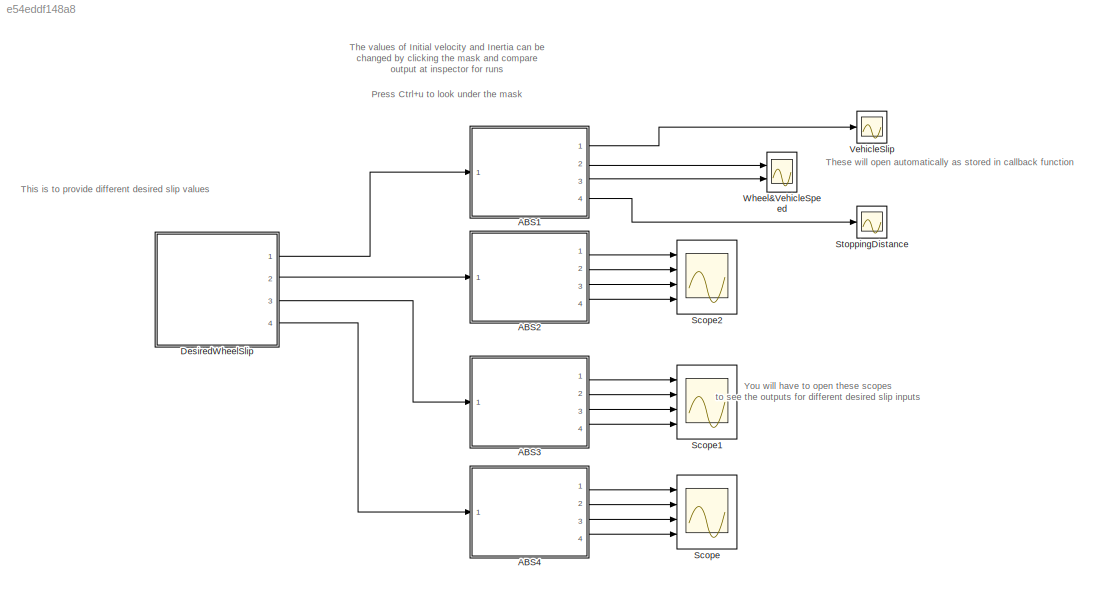
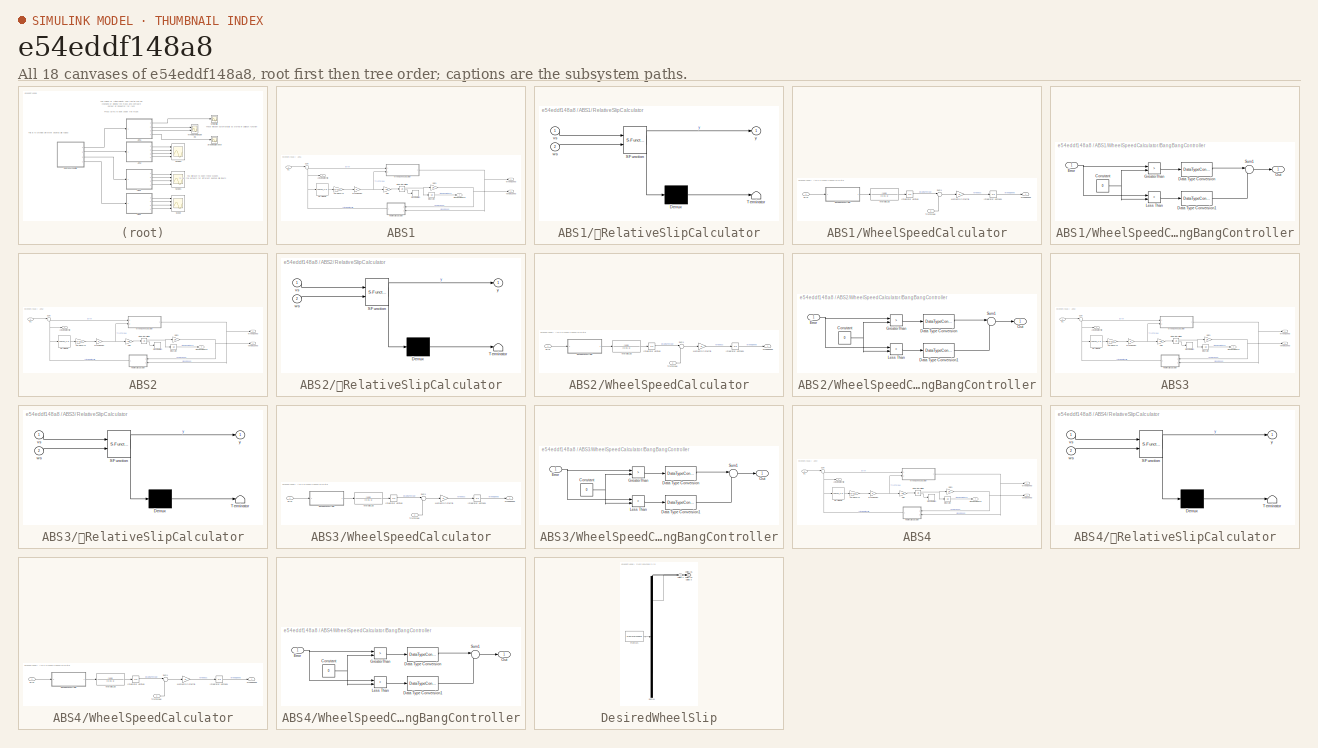
[diagram: thumbnail index - all 18 canvases of the model, root first then tree order]
MODEL slx_e54eddf148a8
KIND model
CONFIG AbsTol = auto
CONFIG EnableMultiTasking = off
CONFIG FixedStep = 0.01
CONFIG InitFcn = m = 75;   % mass of vehicle\ng = 9.81; % gravitational constant\nI = 5;    % moment of inertia\nR = 1.25; % radius of wheel\nv0 = 44;  % initial vehicle speed
CONFIG MaxStep = 0.1
CONFIG MinStep = auto
CONFIG RelTol = 1e-3
CONFIG SampleTimeConstraint = Unconstrained
CONFIG SolverName = ode45
CONFIG StartTime = 0.0
CONFIG StopFcn = open_system("ABS_system/Wheel&VehicleSpeed");\nopen_system("ABS_system/VehicleSlip");\nopen_system("ABS_system/StoppingDistance");
CONFIG StopTime = 20
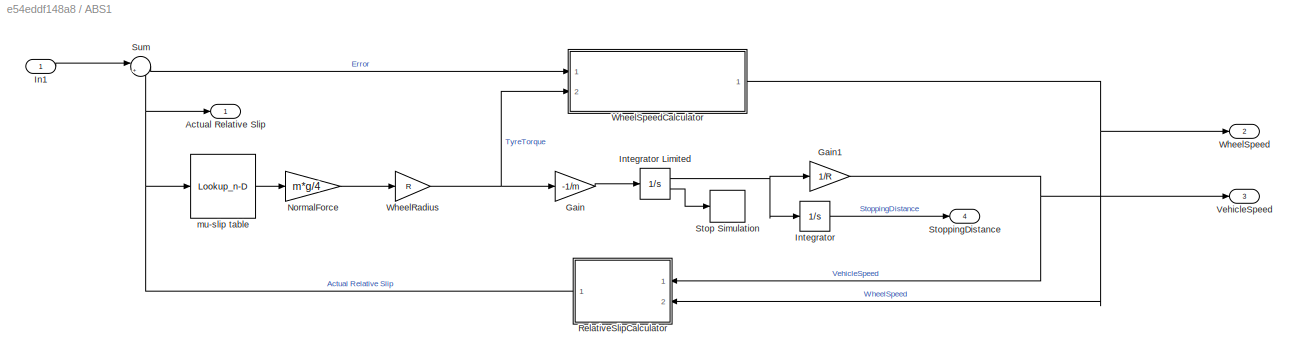
BLOCK [SubSystem] ABS1
  Ports = [1, 4]
  RequestExecContextInheritance = off
BLOCK [SubSystem] ABS1/	RelativeSlipCalculator
  ErrorFcn = Stateflow.Translate.translate
  PermitHierarchicalResolution = ExplicitOnly
  Ports = [2, 1]
  RequestExecContextInheritance = off
  SFBlockType = MATLAB Function
  TreatAsAtomicUnit = on
BLOCK [Demux] ABS1/	RelativeSlipCalculator/ Demux 
  Outputs = 1
  Ports = [1, 1]
BLOCK [S-Function] ABS1/	RelativeSlipCalculator/ SFunction 
  EnableBusSupport = on
  FunctionName = sf_sfun
  PortCounts = [2 2]
  Ports = [2, 2]
  SFcnIsStateOwnerBlock = off
  SFunctionDeploymentMode = off
  Tag = Stateflow S-Function 2
BLOCK [Terminator] ABS1/	RelativeSlipCalculator/ Terminator 
BLOCK [Inport] ABS1/	RelativeSlipCalculator/vs
BLOCK [Inport] ABS1/	RelativeSlipCalculator/ws
  Port = 2
BLOCK [Outport] ABS1/	RelativeSlipCalculator/y
BLOCK [Outport] ABS1/Actual Relative Slip
BLOCK [Gain] ABS1/Gain
  Gain = -1/m
BLOCK [Gain] ABS1/Gain1
  Gain = 1/R
BLOCK [Inport] ABS1/In1
BLOCK [Integrator] ABS1/Integrator
  Ports = [1, 1]
BLOCK [Integrator] ABS1/Integrator Limited
  InitialCondition = v0
  LimitOutput = on
  LowerSaturationLimit = 0
  Ports = [1, 2]
  ShowSaturationPort = on
  UpperSaturationLimit = 1000
BLOCK [Gain] ABS1/NormalForce
  Gain = m*g/4
BLOCK [Stop] ABS1/Stop Simulation
BLOCK [Outport] ABS1/StoppingDistance
  Port = 4
BLOCK [Sum] ABS1/Sum
  Inputs = |+-
  Ports = [2, 1]
BLOCK [Outport] ABS1/VehicleSpeed
  Port = 3
BLOCK [Gain] ABS1/WheelRadius
  Gain = R
BLOCK [Outport] ABS1/WheelSpeed
  Port = 2
BLOCK [SubSystem] ABS1/WheelSpeedCalculator
  Ports = [2, 1]
  RequestExecContextInheritance = off
BLOCK [SubSystem] ABS1/WheelSpeedCalculator/BangBangController
  Ports = [1, 1]
  RequestExecContextInheritance = off
BLOCK [Constant] ABS1/WheelSpeedCalculator/BangBangController/Constant
  Value = 0
BLOCK [DataTypeConversion] ABS1/WheelSpeedCalculator/BangBangController/Data Type Conversion
  OutDataTypeStr = double
  SaturateOnIntegerOverflow = off
BLOCK [DataTypeConversion] ABS1/WheelSpeedCalculator/BangBangController/Data Type Conversion1
  OutDataTypeStr = double
  SaturateOnIntegerOverflow = off
BLOCK [Inport] ABS1/WheelSpeedCalculator/BangBangController/Error
BLOCK [RelationalOperator] ABS1/WheelSpeedCalculator/BangBangController/GreaterThan
  InputSameDT = off
  Operator = >
  OutDataTypeStr = boolean
  Ports = [2, 1]
  RndMeth = Simplest
BLOCK [RelationalOperator] ABS1/WheelSpeedCalculator/BangBangController/Less Than
  InputSameDT = off
  Operator = <
  OutDataTypeStr = boolean
  Ports = [2, 1]
  RndMeth = Simplest
BLOCK [Outport] ABS1/WheelSpeedCalculator/BangBangController/Out
BLOCK [Sum] ABS1/WheelSpeedCalculator/BangBangController/Sum1
  Inputs = |+-
  Ports = [2, 1]
BLOCK [Inport] ABS1/WheelSpeedCalculator/Error
BLOCK [TransferFcn] ABS1/WheelSpeedCalculator/HydraulicLag
  Denominator = [0.01 1]
  Numerator = [100]
BLOCK [Integrator] ABS1/WheelSpeedCalculator/Integrator Limited
  LimitOutput = on
  LowerSaturationLimit = 0
  Ports = [1, 1]
  UpperSaturationLimit = 1000
BLOCK [Integrator] ABS1/WheelSpeedCalculator/Integrator Limited1
  InitialCondition = v0/R
  LimitOutput = on
  LowerSaturationLimit = 0
  Ports = [1, 1]
  UpperSaturationLimit = 1000
BLOCK [Gain] ABS1/WheelSpeedCalculator/MomentOfIntertia
  Gain = 1/I
BLOCK [Sum] ABS1/WheelSpeedCalculator/Sum1
  Inputs = |-+
  Ports = [2, 1]
BLOCK [Inport] ABS1/WheelSpeedCalculator/TyreTorque
  Port = 2
BLOCK [Outport] ABS1/WheelSpeedCalculator/WheelSpeed
BLOCK [Lookup_n-D] ABS1/mu-slip table
  BreakpointsForDimension1 = [0\n,0.05\n,0.1\n,0.15\n,0.2\n,0.25\n,0.3\n,0.35\n,0.4\n,0.45\n,0.5\n,0.55\n,0.6\n,0.65\n,0.7\n,0.75\n,0.8\n,0.85\n,0.9\n,0.95\n,1]
  InputPortMap = u0
  InternalRulePriority = Speed
  NumberOfTableDimensions = 1
  Ports = [1, 1]
  RndMeth = Simplest
  Table = [0\n,0.4\n,0.8\n,0.97\n,1\n,0.98\n,0.96\n,0.94\n,0.92\n,0.9\n,0.88\n,0.855\n,0.83\n,0.81\n,0.79\n,0.77\n,0.75\n,0.73\n,0.72\n,0.71\n,0.7]
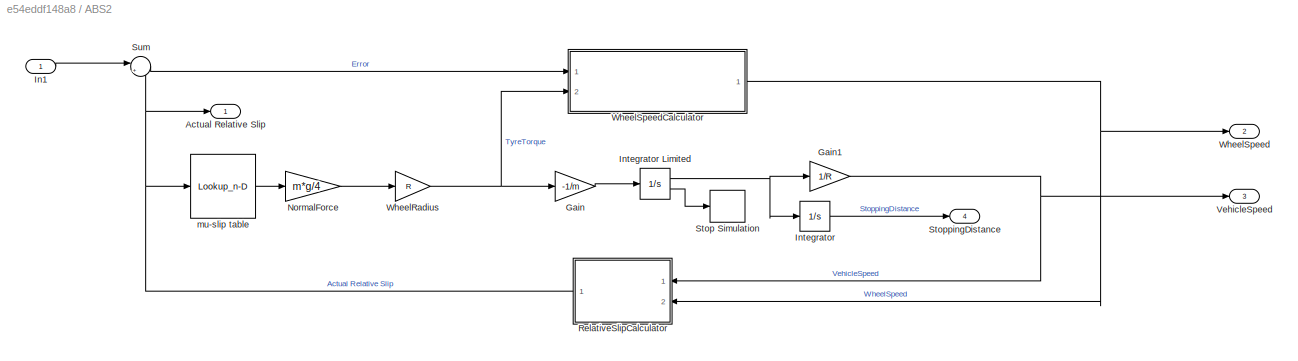
BLOCK [SubSystem] ABS2
  Ports = [1, 4]
  RequestExecContextInheritance = off
BLOCK [SubSystem] ABS2/	RelativeSlipCalculator
  ErrorFcn = Stateflow.Translate.translate
  PermitHierarchicalResolution = ExplicitOnly
  Ports = [2, 1]
  RequestExecContextInheritance = off
  SFBlockType = MATLAB Function
  TreatAsAtomicUnit = on
BLOCK [Demux] ABS2/	RelativeSlipCalculator/ Demux 
  Outputs = 1
  Ports = [1, 1]
BLOCK [S-Function] ABS2/	RelativeSlipCalculator/ SFunction 
  EnableBusSupport = on
  FunctionName = sf_sfun
  PortCounts = [2 2]
  Ports = [2, 2]
  SFcnIsStateOwnerBlock = off
  SFunctionDeploymentMode = off
  Tag = Stateflow S-Function 7
BLOCK [Terminator] ABS2/	RelativeSlipCalculator/ Terminator 
BLOCK [Inport] ABS2/	RelativeSlipCalculator/vs
BLOCK [Inport] ABS2/	RelativeSlipCalculator/ws
  Port = 2
BLOCK [Outport] ABS2/	RelativeSlipCalculator/y
BLOCK [Outport] ABS2/Actual Relative Slip
BLOCK [Gain] ABS2/Gain
  Gain = -1/m
BLOCK [Gain] ABS2/Gain1
  Gain = 1/R
BLOCK [Inport] ABS2/In1
BLOCK [Integrator] ABS2/Integrator
  Ports = [1, 1]
BLOCK [Integrator] ABS2/Integrator Limited
  InitialCondition = v0
  LimitOutput = on
  LowerSaturationLimit = 0
  Ports = [1, 2]
  ShowSaturationPort = on
  UpperSaturationLimit = 1000
BLOCK [Gain] ABS2/NormalForce
  Gain = m*g/4
BLOCK [Stop] ABS2/Stop Simulation
BLOCK [Outport] ABS2/StoppingDistance
  Port = 4
BLOCK [Sum] ABS2/Sum
  Inputs = |+-
  Ports = [2, 1]
BLOCK [Outport] ABS2/VehicleSpeed
  Port = 3
BLOCK [Gain] ABS2/WheelRadius
  Gain = R
BLOCK [Outport] ABS2/WheelSpeed
  Port = 2
BLOCK [SubSystem] ABS2/WheelSpeedCalculator
  Ports = [2, 1]
  RequestExecContextInheritance = off
BLOCK [SubSystem] ABS2/WheelSpeedCalculator/BangBangController
  Ports = [1, 1]
  RequestExecContextInheritance = off
BLOCK [Constant] ABS2/WheelSpeedCalculator/BangBangController/Constant
  Value = 0
BLOCK [DataTypeConversion] ABS2/WheelSpeedCalculator/BangBangController/Data Type Conversion
  OutDataTypeStr = double
  SaturateOnIntegerOverflow = off
BLOCK [DataTypeConversion] ABS2/WheelSpeedCalculator/BangBangController/Data Type Conversion1
  OutDataTypeStr = double
  SaturateOnIntegerOverflow = off
BLOCK [Inport] ABS2/WheelSpeedCalculator/BangBangController/Error
BLOCK [RelationalOperator] ABS2/WheelSpeedCalculator/BangBangController/GreaterThan
  InputSameDT = off
  Operator = >
  OutDataTypeStr = boolean
  Ports = [2, 1]
  RndMeth = Simplest
BLOCK [RelationalOperator] ABS2/WheelSpeedCalculator/BangBangController/Less Than
  InputSameDT = off
  Operator = <
  OutDataTypeStr = boolean
  Ports = [2, 1]
  RndMeth = Simplest
BLOCK [Outport] ABS2/WheelSpeedCalculator/BangBangController/Out
BLOCK [Sum] ABS2/WheelSpeedCalculator/BangBangController/Sum1
  Inputs = |+-
  Ports = [2, 1]
BLOCK [Inport] ABS2/WheelSpeedCalculator/Error
BLOCK [TransferFcn] ABS2/WheelSpeedCalculator/HydraulicLag
  Denominator = [0.01 1]
  Numerator = [100]
BLOCK [Integrator] ABS2/WheelSpeedCalculator/Integrator Limited
  LimitOutput = on
  LowerSaturationLimit = 0
  Ports = [1, 1]
  UpperSaturationLimit = 1000
BLOCK [Integrator] ABS2/WheelSpeedCalculator/Integrator Limited1
  InitialCondition = v0/R
  LimitOutput = on
  LowerSaturationLimit = 0
  Ports = [1, 1]
  UpperSaturationLimit = 1000
BLOCK [Gain] ABS2/WheelSpeedCalculator/MomentOfIntertia
  Gain = 1/I
BLOCK [Sum] ABS2/WheelSpeedCalculator/Sum1
  Inputs = |-+
  Ports = [2, 1]
BLOCK [Inport] ABS2/WheelSpeedCalculator/TyreTorque
  Port = 2
BLOCK [Outport] ABS2/WheelSpeedCalculator/WheelSpeed
BLOCK [Lookup_n-D] ABS2/mu-slip table
  BreakpointsForDimension1 = [0\n,0.05\n,0.1\n,0.15\n,0.2\n,0.25\n,0.3\n,0.35\n,0.4\n,0.45\n,0.5\n,0.55\n,0.6\n,0.65\n,0.7\n,0.75\n,0.8\n,0.85\n,0.9\n,0.95\n,1]
  InputPortMap = u0
  InternalRulePriority = Speed
  NumberOfTableDimensions = 1
  Ports = [1, 1]
  RndMeth = Simplest
  Table = [0\n,0.4\n,0.8\n,0.97\n,1\n,0.98\n,0.96\n,0.94\n,0.92\n,0.9\n,0.88\n,0.855\n,0.83\n,0.81\n,0.79\n,0.77\n,0.75\n,0.73\n,0.72\n,0.71\n,0.7]
BLOCK [SubSystem] ABS3
  Ports = [1, 4]
  RequestExecContextInheritance = off
BLOCK [SubSystem] ABS3/	RelativeSlipCalculator
  ErrorFcn = Stateflow.Translate.translate
  PermitHierarchicalResolution = ExplicitOnly
  Ports = [2, 1]
  RequestExecContextInheritance = off
  SFBlockType = MATLAB Function
  TreatAsAtomicUnit = on
BLOCK [Demux] ABS3/	RelativeSlipCalculator/ Demux 
  Outputs = 1
  Ports = [1, 1]
BLOCK [S-Function] ABS3/	RelativeSlipCalculator/ SFunction 
  EnableBusSupport = on
  FunctionName = sf_sfun
  PortCounts = [2 2]
  Ports = [2, 2]
  SFcnIsStateOwnerBlock = off
  SFunctionDeploymentMode = off
  Tag = Stateflow S-Function 5
BLOCK [Terminator] ABS3/	RelativeSlipCalculator/ Terminator 
BLOCK [Inport] ABS3/	RelativeSlipCalculator/vs
BLOCK [Inport] ABS3/	RelativeSlipCalculator/ws
  Port = 2
BLOCK [Outport] ABS3/	RelativeSlipCalculator/y
BLOCK [Outport] ABS3/Actual Relative Slip
BLOCK [Gain] ABS3/Gain
  Gain = -1/m
BLOCK [Gain] ABS3/Gain1
  Gain = 1/R
BLOCK [Inport] ABS3/In1
BLOCK [Integrator] ABS3/Integrator
  Ports = [1, 1]
BLOCK [Integrator] ABS3/Integrator Limited
  InitialCondition = v0
  LimitOutput = on
  LowerSaturationLimit = 0
  Ports = [1, 2]
  ShowSaturationPort = on
  UpperSaturationLimit = 1000
BLOCK [Gain] ABS3/NormalForce
  Gain = m*g/4
BLOCK [Stop] ABS3/Stop Simulation
BLOCK [Outport] ABS3/StoppingDistance
  Port = 4
BLOCK [Sum] ABS3/Sum
  Inputs = |+-
  Ports = [2, 1]
BLOCK [Outport] ABS3/VehicleSpeed
  Port = 3
BLOCK [Gain] ABS3/WheelRadius
  Gain = R
BLOCK [Outport] ABS3/WheelSpeed
  Port = 2
BLOCK [SubSystem] ABS3/WheelSpeedCalculator
  Ports = [2, 1]
  RequestExecContextInheritance = off
BLOCK [SubSystem] ABS3/WheelSpeedCalculator/BangBangController
  Ports = [1, 1]
  RequestExecContextInheritance = off
BLOCK [Constant] ABS3/WheelSpeedCalculator/BangBangController/Constant
  Value = 0
BLOCK [DataTypeConversion] ABS3/WheelSpeedCalculator/BangBangController/Data Type Conversion
  OutDataTypeStr = double
  SaturateOnIntegerOverflow = off
BLOCK [DataTypeConversion] ABS3/WheelSpeedCalculator/BangBangController/Data Type Conversion1
  OutDataTypeStr = double
  SaturateOnIntegerOverflow = off
BLOCK [Inport] ABS3/WheelSpeedCalculator/BangBangController/Error
BLOCK [RelationalOperator] ABS3/WheelSpeedCalculator/BangBangController/GreaterThan
  InputSameDT = off
  Operator = >
  OutDataTypeStr = boolean
  Ports = [2, 1]
  RndMeth = Simplest
BLOCK [RelationalOperator] ABS3/WheelSpeedCalculator/BangBangController/Less Than
  InputSameDT = off
  Operator = <
  OutDataTypeStr = boolean
  Ports = [2, 1]
  RndMeth = Simplest
BLOCK [Outport] ABS3/WheelSpeedCalculator/BangBangController/Out
BLOCK [Sum] ABS3/WheelSpeedCalculator/BangBangController/Sum1
  Inputs = |+-
  Ports = [2, 1]
BLOCK [Inport] ABS3/WheelSpeedCalculator/Error
BLOCK [TransferFcn] ABS3/WheelSpeedCalculator/HydraulicLag
  Denominator = [0.01 1]
  Numerator = [100]
BLOCK [Integrator] ABS3/WheelSpeedCalculator/Integrator Limited
  LimitOutput = on
  LowerSaturationLimit = 0
  Ports = [1, 1]
  UpperSaturationLimit = 1000
BLOCK [Integrator] ABS3/WheelSpeedCalculator/Integrator Limited1
  InitialCondition = v0/R
  LimitOutput = on
  LowerSaturationLimit = 0
  Ports = [1, 1]
  UpperSaturationLimit = 1000
BLOCK [Gain] ABS3/WheelSpeedCalculator/MomentOfIntertia
  Gain = 1/I
BLOCK [Sum] ABS3/WheelSpeedCalculator/Sum1
  Inputs = |-+
  Ports = [2, 1]
BLOCK [Inport] ABS3/WheelSpeedCalculator/TyreTorque
  Port = 2
BLOCK [Outport] ABS3/WheelSpeedCalculator/WheelSpeed
BLOCK [Lookup_n-D] ABS3/mu-slip table
  BreakpointsForDimension1 = [0\n,0.05\n,0.1\n,0.15\n,0.2\n,0.25\n,0.3\n,0.35\n,0.4\n,0.45\n,0.5\n,0.55\n,0.6\n,0.65\n,0.7\n,0.75\n,0.8\n,0.85\n,0.9\n,0.95\n,1]
  InputPortMap = u0
  InternalRulePriority = Speed
  NumberOfTableDimensions = 1
  Ports = [1, 1]
  RndMeth = Simplest
  Table = [0\n,0.4\n,0.8\n,0.97\n,1\n,0.98\n,0.96\n,0.94\n,0.92\n,0.9\n,0.88\n,0.855\n,0.83\n,0.81\n,0.79\n,0.77\n,0.75\n,0.73\n,0.72\n,0.71\n,0.7]
BLOCK [SubSystem] ABS4
  Ports = [1, 4]
  RequestExecContextInheritance = off
BLOCK [SubSystem] ABS4/	RelativeSlipCalculator
  ErrorFcn = Stateflow.Translate.translate
  PermitHierarchicalResolution = ExplicitOnly
  Ports = [2, 1]
  RequestExecContextInheritance = off
  SFBlockType = MATLAB Function
  TreatAsAtomicUnit = on
BLOCK [Demux] ABS4/	RelativeSlipCalculator/ Demux 
  Outputs = 1
  Ports = [1, 1]
BLOCK [S-Function] ABS4/	RelativeSlipCalculator/ SFunction 
  EnableBusSupport = on
  FunctionName = sf_sfun
  PortCounts = [2 2]
  Ports = [2, 2]
  SFcnIsStateOwnerBlock = off
  SFunctionDeploymentMode = off
  Tag = Stateflow S-Function 6
BLOCK [Terminator] ABS4/	RelativeSlipCalculator/ Terminator 
BLOCK [Inport] ABS4/	RelativeSlipCalculator/vs
BLOCK [Inport] ABS4/	RelativeSlipCalculator/ws
  Port = 2
BLOCK [Outport] ABS4/	RelativeSlipCalculator/y
BLOCK [Outport] ABS4/Actual Relative Slip
BLOCK [Gain] ABS4/Gain
  Gain = -1/m
BLOCK [Gain] ABS4/Gain1
  Gain = 1/R
BLOCK [Inport] ABS4/In1
BLOCK [Integrator] ABS4/Integrator
  Ports = [1, 1]
BLOCK [Integrator] ABS4/Integrator Limited
  InitialCondition = v0
  LimitOutput = on
  LowerSaturationLimit = 0
  Ports = [1, 2]
  ShowSaturationPort = on
  UpperSaturationLimit = 1000
BLOCK [Gain] ABS4/NormalForce
  Gain = m*g/4
BLOCK [Stop] ABS4/Stop Simulation
BLOCK [Outport] ABS4/StoppingDistance
  Port = 4
BLOCK [Sum] ABS4/Sum
  Inputs = |+-
  Ports = [2, 1]
BLOCK [Outport] ABS4/VehicleSpeed
  Port = 3
BLOCK [Gain] ABS4/WheelRadius
  Gain = R
BLOCK [Outport] ABS4/WheelSpeed
  Port = 2
BLOCK [SubSystem] ABS4/WheelSpeedCalculator
  Ports = [2, 1]
  RequestExecContextInheritance = off
BLOCK [SubSystem] ABS4/WheelSpeedCalculator/BangBangController
  Ports = [1, 1]
  RequestExecContextInheritance = off
BLOCK [Constant] ABS4/WheelSpeedCalculator/BangBangController/Constant
  Value = 0
BLOCK [DataTypeConversion] ABS4/WheelSpeedCalculator/BangBangController/Data Type Conversion
  OutDataTypeStr = double
  SaturateOnIntegerOverflow = off
BLOCK [DataTypeConversion] ABS4/WheelSpeedCalculator/BangBangController/Data Type Conversion1
  OutDataTypeStr = double
  SaturateOnIntegerOverflow = off
BLOCK [Inport] ABS4/WheelSpeedCalculator/BangBangController/Error
BLOCK [RelationalOperator] ABS4/WheelSpeedCalculator/BangBangController/GreaterThan
  InputSameDT = off
  Operator = >
  OutDataTypeStr = boolean
  Ports = [2, 1]
  RndMeth = Simplest
BLOCK [RelationalOperator] ABS4/WheelSpeedCalculator/BangBangController/Less Than
  InputSameDT = off
  Operator = <
  OutDataTypeStr = boolean
  Ports = [2, 1]
  RndMeth = Simplest
BLOCK [Outport] ABS4/WheelSpeedCalculator/BangBangController/Out
BLOCK [Sum] ABS4/WheelSpeedCalculator/BangBangController/Sum1
  Inputs = |+-
  Ports = [2, 1]
BLOCK [Inport] ABS4/WheelSpeedCalculator/Error
BLOCK [TransferFcn] ABS4/WheelSpeedCalculator/HydraulicLag
  Denominator = [0.01 1]
  Numerator = [100]
BLOCK [Integrator] ABS4/WheelSpeedCalculator/Integrator Limited
  LimitOutput = on
  LowerSaturationLimit = 0
  Ports = [1, 1]
  UpperSaturationLimit = 1000
BLOCK [Integrator] ABS4/WheelSpeedCalculator/Integrator Limited1
  InitialCondition = v0/R
  LimitOutput = on
  LowerSaturationLimit = 0
  Ports = [1, 1]
  UpperSaturationLimit = 1000
BLOCK [Gain] ABS4/WheelSpeedCalculator/MomentOfIntertia
  Gain = 1/I
BLOCK [Sum] ABS4/WheelSpeedCalculator/Sum1
  Inputs = |-+
  Ports = [2, 1]
BLOCK [Inport] ABS4/WheelSpeedCalculator/TyreTorque
  Port = 2
BLOCK [Outport] ABS4/WheelSpeedCalculator/WheelSpeed
BLOCK [Lookup_n-D] ABS4/mu-slip table
  BreakpointsForDimension1 = [0\n,0.05\n,0.1\n,0.15\n,0.2\n,0.25\n,0.3\n,0.35\n,0.4\n,0.45\n,0.5\n,0.55\n,0.6\n,0.65\n,0.7\n,0.75\n,0.8\n,0.85\n,0.9\n,0.95\n,1]
  InputPortMap = u0
  InternalRulePriority = Speed
  NumberOfTableDimensions = 1
  Ports = [1, 1]
  RndMeth = Simplest
  Table = [0\n,0.4\n,0.8\n,0.97\n,1\n,0.98\n,0.96\n,0.94\n,0.92\n,0.9\n,0.88\n,0.855\n,0.83\n,0.81\n,0.79\n,0.77\n,0.75\n,0.73\n,0.72\n,0.71\n,0.7]
BLOCK [SubSystem] DesiredWheelSlip
  ClipboardFcn = sigbuilder_block('clipboard');
  CloseFcn = sigbuilder_block('close');
  ContinueFcn = sigbuilder_block('continue');
  CopyFcn = sigbuilder_block('copy');
  DeleteFcn = sigbuilder_block('delete');
  LoadFcn = sigbuilder_block('load');
  MaskHideContents = on
  ModelCloseFcn = sigbuilder_block('modelClose');
  NameChangeFcn = sigbuilder_block('namechange');
  OpenFcn = sigbuilder_block('open',[5.4 30 1141.2 522.6 ]);
  PauseFcn = sigbuilder_block('pause');
  Ports = [0, 4]
  PreSaveFcn = sigbuilder_block('preSave');
  RequestExecContextInheritance = off
  StartFcn = sigbuilder_block('start');
  StopFcn = sigbuilder_block('stop');
  Tag = STV Subsys
BLOCK [Outport] DesiredWheelSlip/DSlip0.2
  Tag = STV Outport
BLOCK [Outport] DesiredWheelSlip/DSlip0.25
  Port = 2
  Tag = STV Outport
BLOCK [Outport] DesiredWheelSlip/DSlip0.35
  Port = 3
  Tag = STV Outport
BLOCK [Outport] DesiredWheelSlip/DSlip0.5
  Port = 4
  Tag = STV Outport
BLOCK [Demux] DesiredWheelSlip/Demux
  DisplayOption = none
  Ports = [1, 4]
  Tag = STV Demux
BLOCK [FromWorkspace] DesiredWheelSlip/FromWs
  Tag = STV FromWs
  VariableName = tuvar
BLOCK [Scope] Scope
  Floating = off
  NumInputPorts = 4
  Ports = [4]
  ScopeSpecificationString = Simulink.scopes.TimeScopeBlockCfg('CurrentConfiguration', extmgr.ConfigurationSet(extmgr.Configuration('Core','General UI',true),extmgr.Configuration('Core','Source UI',true),extmgr.Configuration('Sources','WiredSimulink',true,'DataLoggingVariableName','ScopeData10'),extmgr.Configuration('Visuals','Time Domain',true,'SerializedDisplays',{struct('MinYLimReal','-0.125','MaxYLimReal','1.125','YLabelR...<+3427ch>
BLOCK [Scope] Scope1
  Floating = off
  NumInputPorts = 4
  Ports = [4]
  ScopeSpecificationString = Simulink.scopes.TimeScopeBlockCfg('CurrentConfiguration', extmgr.ConfigurationSet(extmgr.Configuration('Core','General UI',true),extmgr.Configuration('Core','Source UI',true),extmgr.Configuration('Sources','WiredSimulink',true,'DataLoggingVariableName','ScopeData1'),extmgr.Configuration('Visuals','Time Domain',true,'SerializedDisplays',{struct('MinYLimReal','-0.125','MaxYLimReal','1.125','YLabelRe...<+3426ch>
BLOCK [Scope] Scope2
  Floating = off
  NumInputPorts = 4
  Ports = [4]
  ScopeSpecificationString = Simulink.scopes.TimeScopeBlockCfg('CurrentConfiguration', extmgr.ConfigurationSet(extmgr.Configuration('Core','General UI',true),extmgr.Configuration('Core','Source UI',true),extmgr.Configuration('Sources','WiredSimulink',true,'DataLoggingVariableName','ScopeData2'),extmgr.Configuration('Visuals','Time Domain',true,'SerializedDisplays',{struct('MinYLimReal','-0.12288','MaxYLimReal','1.10596','YLab...<+3441ch>
BLOCK [Scope] StoppingDistance
  Floating = off
  NumInputPorts = 1
  Ports = [1]
  ScopeSpecificationString = Simulink.scopes.TimeScopeBlockCfg('CurrentConfiguration', extmgr.ConfigurationSet(extmgr.Configuration('Core','General UI',true),extmgr.Configuration('Core','Source UI',true),extmgr.Configuration('Sources','WiredSimulink',true,'DataLoggingVariableName','ScopeData2'),extmgr.Configuration('Visuals','Time Domain',true,'SerializedDisplays',{struct('MinYLimReal','-47.4477','MaxYLimReal','427.02934','YL...<+1419ch>
BLOCK [Scope] VehicleSlip
  Floating = off
  NumInputPorts = 1
  Ports = [1]
  ScopeSpecificationString = Simulink.scopes.TimeScopeBlockCfg('CurrentConfiguration', extmgr.ConfigurationSet(extmgr.Configuration('Core','General UI',true),extmgr.Configuration('Core','Source UI',true),extmgr.Configuration('Sources','WiredSimulink',true,'DataLoggingVariableName','ScopeData3'),extmgr.Configuration('Visuals','Time Domain',true,'SerializedDisplays',{struct('MinYLimReal','-0.125','MaxYLimReal','1.125','YLabelRe...<+1401ch>
BLOCK [Scope] Wheel&VehicleSpeed
  Floating = off
  NumInputPorts = 2
  Ports = [2]
  ScopeSpecificationString = Simulink.scopes.TimeScopeBlockCfg('CurrentConfiguration', extmgr.ConfigurationSet(extmgr.Configuration('Core','General UI',true),extmgr.Configuration('Core','Source UI',true),extmgr.Configuration('Sources','WiredSimulink',true,'DataLoggingVariableName','ScopeData1'),extmgr.Configuration('Visuals','Time Domain',true,'SerializedDisplays',{struct('MinYLimReal','-4.40001','MaxYLimReal','39.60009','YLa...<+1469ch>
ANNOTATION (root): You will have to open these scopes to see the outputs for different desired slip inputs
ANNOTATION (root): Press Ctrl+u to look under the mask
ANNOTATION (root): The values of Initial velocity and Inertia can be changed by clicking the mask and compare output at inspector for runs
ANNOTATION (root): These will open automatically as stored in callback function
ANNOTATION (root): This is to provide different desired slip values
NET ABS1/	RelativeSlipCalculator:1 -> ABS1/Actual Relative Slip:1, ABS1/Sum:2, ABS1/mu-slip table:1
NET ABS1/Gain1:1 -> ABS1/	RelativeSlipCalculator:1, ABS1/VehicleSpeed:1
LINE ABS1/Gain:1 -> ABS1/Integrator Limited:1
LINE ABS1/In1:1 -> ABS1/Sum:1
NET ABS1/Integrator Limited:1 -> ABS1/Gain1:1, ABS1/Integrator:1
LINE ABS1/Integrator Limited:2 -> ABS1/Stop Simulation:1
LINE ABS1/Integrator:1 -> ABS1/StoppingDistance:1
LINE ABS1/NormalForce:1 -> ABS1/WheelRadius:1
LINE ABS1/Sum:1 -> ABS1/WheelSpeedCalculator:1
NET ABS1/WheelRadius:1 -> ABS1/Gain:1, ABS1/WheelSpeedCalculator:2
NET ABS1/WheelSpeedCalculator/BangBangController/Constant:1 -> ABS1/WheelSpeedCalculator/BangBangController/GreaterThan:2, ABS1/WheelSpeedCalculator/BangBangController/Less Than:2
LINE ABS1/WheelSpeedCalculator/BangBangController/Data Type Conversion1:1 -> ABS1/WheelSpeedCalculator/BangBangController/Sum1:2
LINE ABS1/WheelSpeedCalculator/BangBangController/Data Type Conversion:1 -> ABS1/WheelSpeedCalculator/BangBangController/Sum1:1
NET ABS1/WheelSpeedCalculator/BangBangController/Error:1 -> ABS1/WheelSpeedCalculator/BangBangController/GreaterThan:1, ABS1/WheelSpeedCalculator/BangBangController/Less Than:1
LINE ABS1/WheelSpeedCalculator/BangBangController/GreaterThan:1 -> ABS1/WheelSpeedCalculator/BangBangController/Data Type Conversion:1
LINE ABS1/WheelSpeedCalculator/BangBangController/Less Than:1 -> ABS1/WheelSpeedCalculator/BangBangController/Data Type Conversion1:1
LINE ABS1/WheelSpeedCalculator/BangBangController/Sum1:1 -> ABS1/WheelSpeedCalculator/BangBangController/Out:1
LINE ABS1/WheelSpeedCalculator/BangBangController:1 -> ABS1/WheelSpeedCalculator/HydraulicLag:1
LINE ABS1/WheelSpeedCalculator/Error:1 -> ABS1/WheelSpeedCalculator/BangBangController:1
LINE ABS1/WheelSpeedCalculator/HydraulicLag:1 -> ABS1/WheelSpeedCalculator/Integrator Limited:1
LINE ABS1/WheelSpeedCalculator/Integrator Limited1:1 -> ABS1/WheelSpeedCalculator/WheelSpeed:1
LINE ABS1/WheelSpeedCalculator/Integrator Limited:1 -> ABS1/WheelSpeedCalculator/Sum1:1
LINE ABS1/WheelSpeedCalculator/MomentOfIntertia:1 -> ABS1/WheelSpeedCalculator/Integrator Limited1:1
LINE ABS1/WheelSpeedCalculator/Sum1:1 -> ABS1/WheelSpeedCalculator/MomentOfIntertia:1
LINE ABS1/WheelSpeedCalculator/TyreTorque:1 -> ABS1/WheelSpeedCalculator/Sum1:2
NET ABS1/WheelSpeedCalculator:1 -> ABS1/	RelativeSlipCalculator:2, ABS1/WheelSpeed:1
LINE ABS1/mu-slip table:1 -> ABS1/NormalForce:1
LINE ABS1:1 -> VehicleSlip:1
LINE ABS1:2 -> Wheel&VehicleSpeed:1
LINE ABS1:3 -> Wheel&VehicleSpeed:2
LINE ABS1:4 -> StoppingDistance:1
NET ABS2/	RelativeSlipCalculator:1 -> ABS2/Actual Relative Slip:1, ABS2/Sum:2, ABS2/mu-slip table:1
NET ABS2/Gain1:1 -> ABS2/	RelativeSlipCalculator:1, ABS2/VehicleSpeed:1
LINE ABS2/Gain:1 -> ABS2/Integrator Limited:1
LINE ABS2/In1:1 -> ABS2/Sum:1
NET ABS2/Integrator Limited:1 -> ABS2/Gain1:1, ABS2/Integrator:1
LINE ABS2/Integrator Limited:2 -> ABS2/Stop Simulation:1
LINE ABS2/Integrator:1 -> ABS2/StoppingDistance:1
LINE ABS2/NormalForce:1 -> ABS2/WheelRadius:1
LINE ABS2/Sum:1 -> ABS2/WheelSpeedCalculator:1
NET ABS2/WheelRadius:1 -> ABS2/Gain:1, ABS2/WheelSpeedCalculator:2
NET ABS2/WheelSpeedCalculator/BangBangController/Constant:1 -> ABS2/WheelSpeedCalculator/BangBangController/GreaterThan:2, ABS2/WheelSpeedCalculator/BangBangController/Less Than:2
LINE ABS2/WheelSpeedCalculator/BangBangController/Data Type Conversion1:1 -> ABS2/WheelSpeedCalculator/BangBangController/Sum1:2
LINE ABS2/WheelSpeedCalculator/BangBangController/Data Type Conversion:1 -> ABS2/WheelSpeedCalculator/BangBangController/Sum1:1
NET ABS2/WheelSpeedCalculator/BangBangController/Error:1 -> ABS2/WheelSpeedCalculator/BangBangController/GreaterThan:1, ABS2/WheelSpeedCalculator/BangBangController/Less Than:1
LINE ABS2/WheelSpeedCalculator/BangBangController/GreaterThan:1 -> ABS2/WheelSpeedCalculator/BangBangController/Data Type Conversion:1
LINE ABS2/WheelSpeedCalculator/BangBangController/Less Than:1 -> ABS2/WheelSpeedCalculator/BangBangController/Data Type Conversion1:1
LINE ABS2/WheelSpeedCalculator/BangBangController/Sum1:1 -> ABS2/WheelSpeedCalculator/BangBangController/Out:1
LINE ABS2/WheelSpeedCalculator/BangBangController:1 -> ABS2/WheelSpeedCalculator/HydraulicLag:1
LINE ABS2/WheelSpeedCalculator/Error:1 -> ABS2/WheelSpeedCalculator/BangBangController:1
LINE ABS2/WheelSpeedCalculator/HydraulicLag:1 -> ABS2/WheelSpeedCalculator/Integrator Limited:1
LINE ABS2/WheelSpeedCalculator/Integrator Limited1:1 -> ABS2/WheelSpeedCalculator/WheelSpeed:1
LINE ABS2/WheelSpeedCalculator/Integrator Limited:1 -> ABS2/WheelSpeedCalculator/Sum1:1
LINE ABS2/WheelSpeedCalculator/MomentOfIntertia:1 -> ABS2/WheelSpeedCalculator/Integrator Limited1:1
LINE ABS2/WheelSpeedCalculator/Sum1:1 -> ABS2/WheelSpeedCalculator/MomentOfIntertia:1
LINE ABS2/WheelSpeedCalculator/TyreTorque:1 -> ABS2/WheelSpeedCalculator/Sum1:2
NET ABS2/WheelSpeedCalculator:1 -> ABS2/	RelativeSlipCalculator:2, ABS2/WheelSpeed:1
LINE ABS2/mu-slip table:1 -> ABS2/NormalForce:1
LINE ABS2:1 -> Scope2:1
LINE ABS2:2 -> Scope2:2
LINE ABS2:3 -> Scope2:3
LINE ABS2:4 -> Scope2:4
NET ABS3/	RelativeSlipCalculator:1 -> ABS3/Actual Relative Slip:1, ABS3/Sum:2, ABS3/mu-slip table:1
NET ABS3/Gain1:1 -> ABS3/	RelativeSlipCalculator:1, ABS3/VehicleSpeed:1
LINE ABS3/Gain:1 -> ABS3/Integrator Limited:1
LINE ABS3/In1:1 -> ABS3/Sum:1
NET ABS3/Integrator Limited:1 -> ABS3/Gain1:1, ABS3/Integrator:1
LINE ABS3/Integrator Limited:2 -> ABS3/Stop Simulation:1
LINE ABS3/Integrator:1 -> ABS3/StoppingDistance:1
LINE ABS3/NormalForce:1 -> ABS3/WheelRadius:1
LINE ABS3/Sum:1 -> ABS3/WheelSpeedCalculator:1
NET ABS3/WheelRadius:1 -> ABS3/Gain:1, ABS3/WheelSpeedCalculator:2
NET ABS3/WheelSpeedCalculator/BangBangController/Constant:1 -> ABS3/WheelSpeedCalculator/BangBangController/GreaterThan:2, ABS3/WheelSpeedCalculator/BangBangController/Less Than:2
LINE ABS3/WheelSpeedCalculator/BangBangController/Data Type Conversion1:1 -> ABS3/WheelSpeedCalculator/BangBangController/Sum1:2
LINE ABS3/WheelSpeedCalculator/BangBangController/Data Type Conversion:1 -> ABS3/WheelSpeedCalculator/BangBangController/Sum1:1
NET ABS3/WheelSpeedCalculator/BangBangController/Error:1 -> ABS3/WheelSpeedCalculator/BangBangController/GreaterThan:1, ABS3/WheelSpeedCalculator/BangBangController/Less Than:1
LINE ABS3/WheelSpeedCalculator/BangBangController/GreaterThan:1 -> ABS3/WheelSpeedCalculator/BangBangController/Data Type Conversion:1
LINE ABS3/WheelSpeedCalculator/BangBangController/Less Than:1 -> ABS3/WheelSpeedCalculator/BangBangController/Data Type Conversion1:1
LINE ABS3/WheelSpeedCalculator/BangBangController/Sum1:1 -> ABS3/WheelSpeedCalculator/BangBangController/Out:1
LINE ABS3/WheelSpeedCalculator/BangBangController:1 -> ABS3/WheelSpeedCalculator/HydraulicLag:1
LINE ABS3/WheelSpeedCalculator/Error:1 -> ABS3/WheelSpeedCalculator/BangBangController:1
LINE ABS3/WheelSpeedCalculator/HydraulicLag:1 -> ABS3/WheelSpeedCalculator/Integrator Limited:1
LINE ABS3/WheelSpeedCalculator/Integrator Limited1:1 -> ABS3/WheelSpeedCalculator/WheelSpeed:1
LINE ABS3/WheelSpeedCalculator/Integrator Limited:1 -> ABS3/WheelSpeedCalculator/Sum1:1
LINE ABS3/WheelSpeedCalculator/MomentOfIntertia:1 -> ABS3/WheelSpeedCalculator/Integrator Limited1:1
LINE ABS3/WheelSpeedCalculator/Sum1:1 -> ABS3/WheelSpeedCalculator/MomentOfIntertia:1
LINE ABS3/WheelSpeedCalculator/TyreTorque:1 -> ABS3/WheelSpeedCalculator/Sum1:2
NET ABS3/WheelSpeedCalculator:1 -> ABS3/	RelativeSlipCalculator:2, ABS3/WheelSpeed:1
LINE ABS3/mu-slip table:1 -> ABS3/NormalForce:1
LINE ABS3:1 -> Scope1:1
LINE ABS3:2 -> Scope1:2
LINE ABS3:3 -> Scope1:3
LINE ABS3:4 -> Scope1:4
NET ABS4/	RelativeSlipCalculator:1 -> ABS4/Actual Relative Slip:1, ABS4/Sum:2, ABS4/mu-slip table:1
NET ABS4/Gain1:1 -> ABS4/	RelativeSlipCalculator:1, ABS4/VehicleSpeed:1
LINE ABS4/Gain:1 -> ABS4/Integrator Limited:1
LINE ABS4/In1:1 -> ABS4/Sum:1
NET ABS4/Integrator Limited:1 -> ABS4/Gain1:1, ABS4/Integrator:1
LINE ABS4/Integrator Limited:2 -> ABS4/Stop Simulation:1
LINE ABS4/Integrator:1 -> ABS4/StoppingDistance:1
LINE ABS4/NormalForce:1 -> ABS4/WheelRadius:1
LINE ABS4/Sum:1 -> ABS4/WheelSpeedCalculator:1
NET ABS4/WheelRadius:1 -> ABS4/Gain:1, ABS4/WheelSpeedCalculator:2
NET ABS4/WheelSpeedCalculator/BangBangController/Constant:1 -> ABS4/WheelSpeedCalculator/BangBangController/GreaterThan:2, ABS4/WheelSpeedCalculator/BangBangController/Less Than:2
LINE ABS4/WheelSpeedCalculator/BangBangController/Data Type Conversion1:1 -> ABS4/WheelSpeedCalculator/BangBangController/Sum1:2
LINE ABS4/WheelSpeedCalculator/BangBangController/Data Type Conversion:1 -> ABS4/WheelSpeedCalculator/BangBangController/Sum1:1
NET ABS4/WheelSpeedCalculator/BangBangController/Error:1 -> ABS4/WheelSpeedCalculator/BangBangController/GreaterThan:1, ABS4/WheelSpeedCalculator/BangBangController/Less Than:1
LINE ABS4/WheelSpeedCalculator/BangBangController/GreaterThan:1 -> ABS4/WheelSpeedCalculator/BangBangController/Data Type Conversion:1
LINE ABS4/WheelSpeedCalculator/BangBangController/Less Than:1 -> ABS4/WheelSpeedCalculator/BangBangController/Data Type Conversion1:1
LINE ABS4/WheelSpeedCalculator/BangBangController/Sum1:1 -> ABS4/WheelSpeedCalculator/BangBangController/Out:1
LINE ABS4/WheelSpeedCalculator/BangBangController:1 -> ABS4/WheelSpeedCalculator/HydraulicLag:1
LINE ABS4/WheelSpeedCalculator/Error:1 -> ABS4/WheelSpeedCalculator/BangBangController:1
LINE ABS4/WheelSpeedCalculator/HydraulicLag:1 -> ABS4/WheelSpeedCalculator/Integrator Limited:1
LINE ABS4/WheelSpeedCalculator/Integrator Limited1:1 -> ABS4/WheelSpeedCalculator/WheelSpeed:1
LINE ABS4/WheelSpeedCalculator/Integrator Limited:1 -> ABS4/WheelSpeedCalculator/Sum1:1
LINE ABS4/WheelSpeedCalculator/MomentOfIntertia:1 -> ABS4/WheelSpeedCalculator/Integrator Limited1:1
LINE ABS4/WheelSpeedCalculator/Sum1:1 -> ABS4/WheelSpeedCalculator/MomentOfIntertia:1
LINE ABS4/WheelSpeedCalculator/TyreTorque:1 -> ABS4/WheelSpeedCalculator/Sum1:2
NET ABS4/WheelSpeedCalculator:1 -> ABS4/	RelativeSlipCalculator:2, ABS4/WheelSpeed:1
LINE ABS4/mu-slip table:1 -> ABS4/NormalForce:1
LINE ABS4:1 -> Scope:1
LINE ABS4:2 -> Scope:2
LINE ABS4:3 -> Scope:3
LINE ABS4:4 -> Scope:4
LINE DesiredWheelSlip:1 -> ABS1:1
LINE DesiredWheelSlip:2 -> ABS2:1
LINE DesiredWheelSlip:3 -> ABS3:1
LINE DesiredWheelSlip:4 -> ABS4:1
note: NET lines group one-source signal fan-out (src -> all destinations, sorted); 1:1 wires keep LINE
CHART ABS3/	RelativeSlipCalculator states=1 transitions=1
  STATE_LABEL 'eML_blk_kernel()'
  STATE_LABEL 'SCRIPT:\nfunction y = fcn(vs,ws)\ny = 1-(ws/vs);\n'
CHART ABS4/	RelativeSlipCalculator states=1 transitions=1
  STATE_LABEL 'eML_blk_kernel()'
  STATE_LABEL 'SCRIPT:\nfunction y = fcn(vs,ws)\ny = 1-(ws/vs);\n'
CHART ABS2/	RelativeSlipCalculator states=1 transitions=1
  STATE_LABEL 'eML_blk_kernel()'
  STATE_LABEL 'SCRIPT:\nfunction y = fcn(vs,ws)\ny = 1-(ws/vs);\n'
CHART ABS1/	RelativeSlipCalculator states=1 transitions=1
  STATE_LABEL 'eML_blk_kernel()'
  STATE_LABEL 'SCRIPT:\nfunction y = fcn(vs,ws)\ny = 1-(ws/vs);\n'
CHART  states=0 transitions=0
CHART  states=0 transitions=0
CHART  states=0 transitions=0
CHART  states=0 transitions=0
